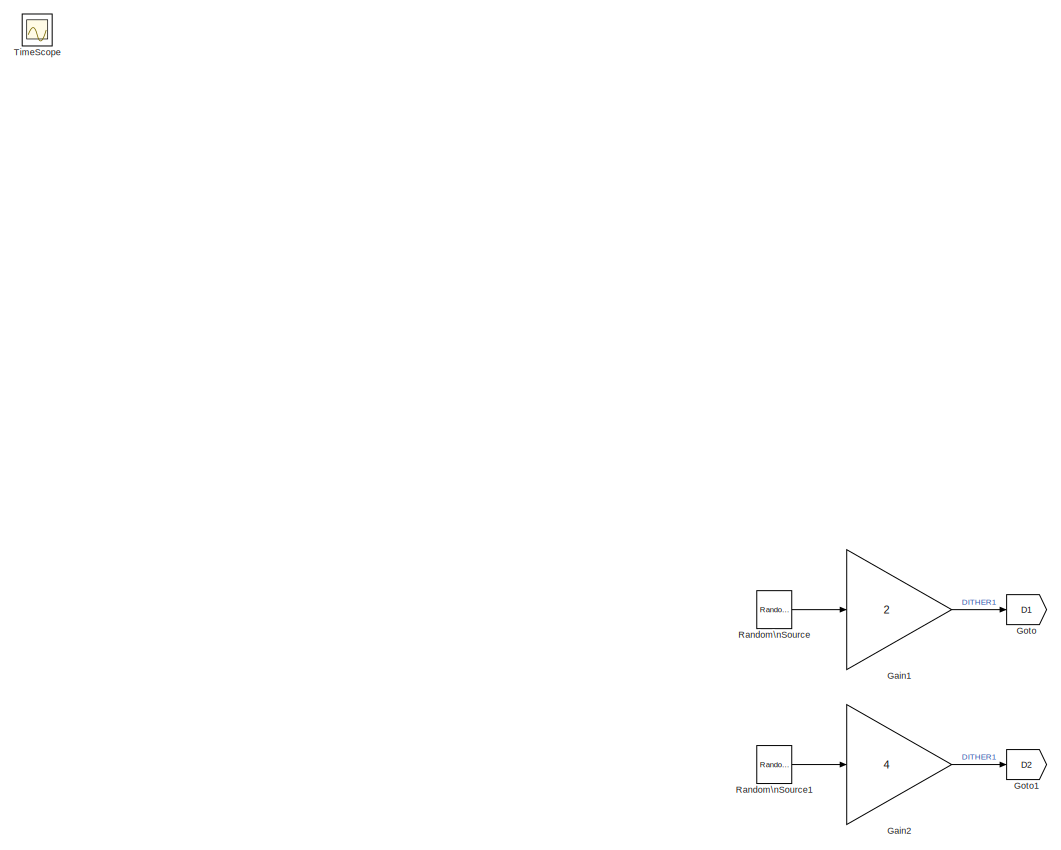
[diagram: root canvas - part 1/3, top left region]
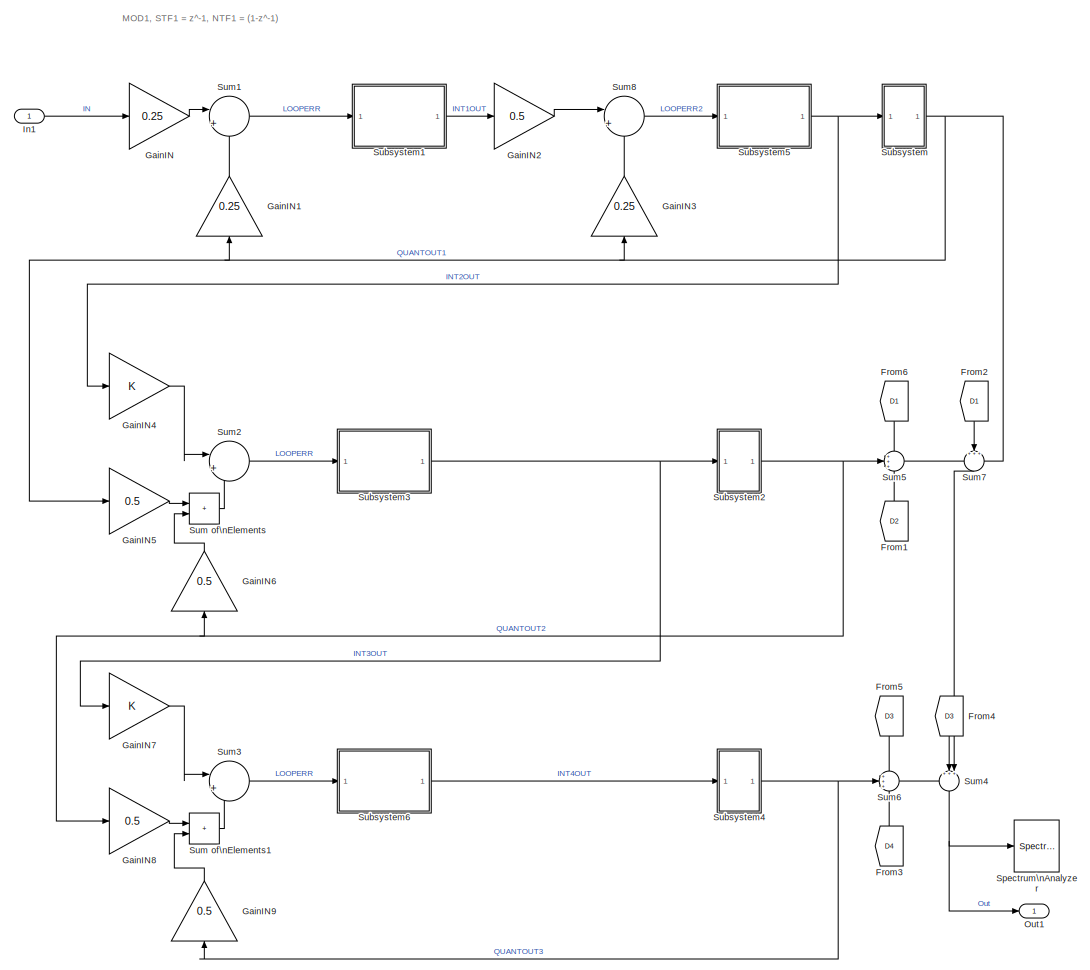
[diagram: root canvas - part 2/3, middle right region]
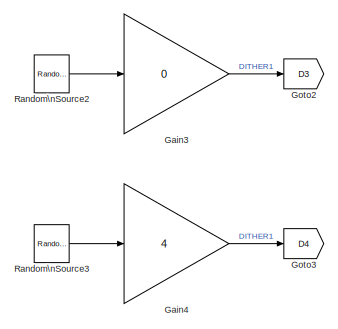
[diagram: root canvas - part 3/3, bottom center region]
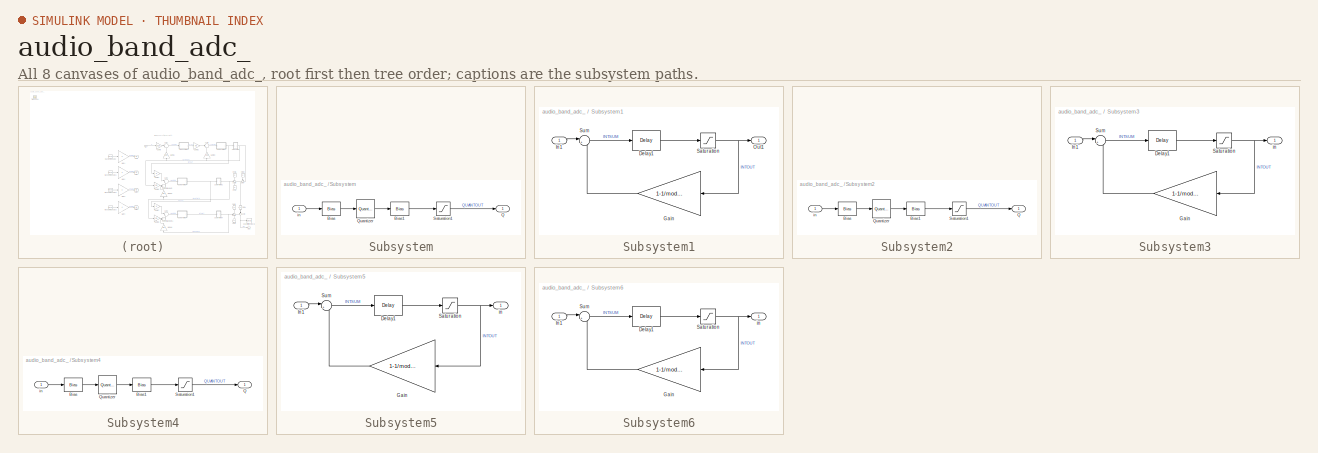
[diagram: thumbnail index - all 8 canvases of the model, root first then tree order]
MODEL audio_band_adc_
KIND model
BLOCK [From] From1
  GotoTag = D2
  NameLocation = right
  SID = 246
BLOCK [From] From2
  GotoTag = D1
  NameLocation = left
  SID = 247
BLOCK [From] From3
  GotoTag = D4
  NameLocation = right
  SID = 248
BLOCK [From] From4
  GotoTag = D3
  NameLocation = left
  SID = 249
BLOCK [From] From5
  GotoTag = D3
  NameLocation = right
  SID = 250
BLOCK [From] From6
  GotoTag = D1
  NameLocation = right
  SID = 251
BLOCK [Gain] Gain1
  AttributesFormatString = Dither level adjust
  Gain = 2
  SID = 252
BLOCK [Gain] Gain2
  AttributesFormatString = Dither level adjust
  Gain = 4
  SID = 253
BLOCK [Gain] Gain3
  AttributesFormatString = Dither level adjust
  Gain = 0
  SID = 254
BLOCK [Gain] Gain4
  AttributesFormatString = Dither level adjust
  Gain = 4
  SID = 255
BLOCK [Gain] GainIN
  Gain = 0.25
  SID = 256
BLOCK [Gain] GainIN1
  Gain = 0.25
  NameLocation = right
  SID = 257
BLOCK [Gain] GainIN2
  Gain = 0.5
  NameLocation = top
  SID = 258
BLOCK [Gain] GainIN3
  Gain = 0.25
  NameLocation = right
  SID = 259
BLOCK [Gain] GainIN4
  SID = 260
BLOCK [Gain] GainIN5
  Gain = 0.5
  SID = 261
BLOCK [Gain] GainIN6
  Gain = 0.5
  NameLocation = right
  SID = 262
BLOCK [Gain] GainIN7
  SID = 263
BLOCK [Gain] GainIN8
  Gain = 0.5
  SID = 264
BLOCK [Gain] GainIN9
  Gain = 0.5
  NameLocation = right
  SID = 265
BLOCK [Goto] Goto
  GotoTag = D1
  SID = 266
BLOCK [Goto] Goto1
  GotoTag = D2
  SID = 267
BLOCK [Goto] Goto2
  GotoTag = D3
  SID = 268
BLOCK [Goto] Goto3
  GotoTag = D4
  SID = 269
BLOCK [Inport] In1
  SID = 394
BLOCK [Outport] Out1
  SID = 337
  SignalName = Out
BLOCK [Reference] Random\nSource  REF=dspsrcs4/Random\nSource
  AttributesFormatString = Dither source
  CltLength = 12
  DataType = Double
  IsInherit = off
  MaxVal = 1
  MeanVal = 0
  MinVal = -1
  MultithreadedSim = auto
  NormMethod = Ziggurat
  OutComplex = Real
  OutputFrames = on
  Ports = [0, 1]
  RepMode = Not repeatable
  SID = 270
  SampFrame = 1
  SampMode = Discrete
  SampTime = 1/Fs
  SourceBlock = dspsrcs4/Random\nSource
  SourceProductBaseCode = DS
  SourceType = Random Source
  SrcType = Uniform
  UserData = DataTag0
  UserDataPersistent = on
  VarVal = 1
  rawSeed = 1
BLOCK [Reference] Random\nSource1  REF=dspsrcs4/Random\nSource
  AttributesFormatString = Dither source
  CltLength = 12
  DataType = Double
  IsInherit = off
  MaxVal = 1
  MeanVal = 0
  MinVal = -1
  MultithreadedSim = auto
  NormMethod = Ziggurat
  OutComplex = Real
  OutputFrames = on
  Ports = [0, 1]
  RepMode = Not repeatable
  SID = 271
  SampFrame = 1
  SampMode = Discrete
  SampTime = 1/Fs
  SourceBlock = dspsrcs4/Random\nSource
  SourceProductBaseCode = DS
  SourceType = Random Source
  SrcType = Uniform
  UserData = DataTag1
  UserDataPersistent = on
  VarVal = 1
  rawSeed = 1
BLOCK [Reference] Random\nSource2  REF=dspsrcs4/Random\nSource
  AttributesFormatString = Dither source
  CltLength = 12
  DataType = Double
  IsInherit = off
  MaxVal = 1
  MeanVal = 0
  MinVal = -1
  MultithreadedSim = auto
  NormMethod = Ziggurat
  OutComplex = Real
  OutputFrames = on
  Ports = [0, 1]
  RepMode = Not repeatable
  SID = 272
  SampFrame = 1
  SampMode = Discrete
  SampTime = 1/Fs
  SourceBlock = dspsrcs4/Random\nSource
  SourceProductBaseCode = DS
  SourceType = Random Source
  SrcType = Uniform
  UserData = DataTag2
  UserDataPersistent = on
  VarVal = 1
  rawSeed = 1
BLOCK [Reference] Random\nSource3  REF=dspsrcs4/Random\nSource
  AttributesFormatString = Dither source
  CltLength = 12
  DataType = Double
  IsInherit = off
  MaxVal = 1
  MeanVal = 0
  MinVal = -1
  MultithreadedSim = auto
  NormMethod = Ziggurat
  OutComplex = Real
  OutputFrames = on
  Ports = [0, 1]
  RepMode = Not repeatable
  SID = 273
  SampFrame = 1
  SampMode = Discrete
  SampTime = 1/Fs
  SourceBlock = dspsrcs4/Random\nSource
  SourceProductBaseCode = DS
  SourceType = Random Source
  SrcType = Uniform
  UserData = DataTag3
  UserDataPersistent = on
  VarVal = 1
  rawSeed = 1
BLOCK [SpectrumAnalyzer] Spectrum\nAnalyzer
  Ports = [1]
  SID = 391
  ScopeSpecificationString = spbscopes.SpectrumAnalyzerBlockCfg('CurrentConfiguration', extmgr.ConfigurationSet(extmgr.Configuration('Core','General UI',true),extmgr.Configuration('Core','Source UI',true),extmgr.Configuration('Sources','WiredSimulink',true),extmgr.Configuration('Visuals','Spectrum',true,'AxesProperties',struct('Color',{[0 0 0],[0 0 0]},'XColor',{[0.686274509803922 0.686274509803922 0.686274509803922],[0.68627...<+1881ch>
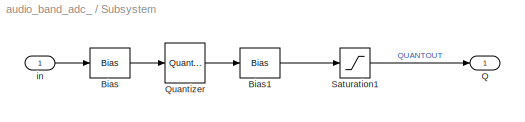
BLOCK [SubSystem] Subsystem
  AttributesFormatString = 1-bit quantiser
  Ports = [1, 1]
  RequestExecContextInheritance = off
  SID = 369
BLOCK [Bias] Subsystem/Bias
  AttributesFormatString = Need offset to give\\nMID-RISE quantiser
  Bias = 1
  SID = 371
  SaturateOnIntegerOverflow = off
BLOCK [Bias] Subsystem/Bias1
  Bias = -1
  SID = 372
  SaturateOnIntegerOverflow = off
BLOCK [Outport] Subsystem/Q
  SID = 375
BLOCK [Quantizer] Subsystem/Quantizer
  LinearizeAsGain = off
  NameLocation = top
  QuantizationInterval = 2
  SID = 373
BLOCK [Saturate] Subsystem/Saturation1
  AttributesFormatString = Limit quantiser\\noutput to +/-1
  LowerLimit = -1
  SID = 374
  UpperLimit = 1
BLOCK [Inport] Subsystem/in
  SID = 370
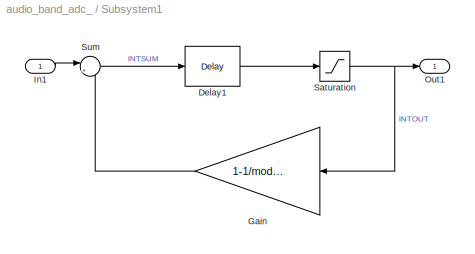
BLOCK [SubSystem] Subsystem1
  AttributesFormatString = Leaky delaying int
  Ports = [1, 1]
  RequestExecContextInheritance = off
  SID = 274
BLOCK [Delay] Subsystem1/Delay1
  DelayLength = 1
  InitialCondition = 0
  InputPortMap = u0
  Ports = [1, 1]
  SID = 276
  UserData = DataTag4
  UserDataPersistent = on
BLOCK [Gain] Subsystem1/Gain
  AttributesFormatString = Integrator leakage
  Gain = 1-1/modctrl.igain1
  SID = 277
BLOCK [Inport] Subsystem1/In1
  SID = 275
BLOCK [Outport] Subsystem1/Out1
  SID = 280
BLOCK [Saturate] Subsystem1/Saturation
  LowerLimit = -(modctrl.isat1)
  NameLocation = top
  SID = 278
  UpperLimit = modctrl.isat1
BLOCK [Sum] Subsystem1/Sum
  AttributesFormatString = Integrator summer
  Inputs = |++
  NameLocation = top
  Ports = [2, 1]
  SID = 279
BLOCK [SubSystem] Subsystem2
  AttributesFormatString = 1-bit quantiser
  Ports = [1, 1]
  RequestExecContextInheritance = off
  SID = 376
BLOCK [Bias] Subsystem2/Bias
  AttributesFormatString = Need offset to give\\nMID-RISE quantiser
  Bias = 1
  SID = 378
  SaturateOnIntegerOverflow = off
BLOCK [Bias] Subsystem2/Bias1
  Bias = -1
  SID = 379
  SaturateOnIntegerOverflow = off
BLOCK [Outport] Subsystem2/Q
  SID = 382
BLOCK [Quantizer] Subsystem2/Quantizer
  LinearizeAsGain = off
  NameLocation = top
  QuantizationInterval = 2
  SID = 380
BLOCK [Saturate] Subsystem2/Saturation1
  AttributesFormatString = Limit quantiser\\noutput to +/-1
  LowerLimit = -1
  SID = 381
  UpperLimit = 1
BLOCK [Inport] Subsystem2/in
  SID = 377
BLOCK [SubSystem] Subsystem3
  AttributesFormatString = Leaky delaying int
  Ports = [1, 1]
  RequestExecContextInheritance = off
  SID = 288
BLOCK [Delay] Subsystem3/Delay1
  DelayLength = 1
  InitialCondition = 0
  InputPortMap = u0
  Ports = [1, 1]
  SID = 290
  UserData = DataTag5
  UserDataPersistent = on
BLOCK [Gain] Subsystem3/Gain
  AttributesFormatString = Integrator leakage
  Gain = 1-1/modctrl.igain1
  SID = 291
BLOCK [Inport] Subsystem3/In1
  SID = 289
BLOCK [Saturate] Subsystem3/Saturation
  LowerLimit = -(modctrl.isat1)
  NameLocation = top
  SID = 292
  UpperLimit = modctrl.isat1
BLOCK [Sum] Subsystem3/Sum
  AttributesFormatString = Integrator summer
  Inputs = |++
  NameLocation = top
  Ports = [2, 1]
  SID = 293
BLOCK [Outport] Subsystem3/in
  SID = 294
BLOCK [SubSystem] Subsystem4
  AttributesFormatString = 1-bit quantiser
  Ports = [1, 1]
  RequestExecContextInheritance = off
  SID = 383
BLOCK [Bias] Subsystem4/Bias
  AttributesFormatString = Need offset to give\\nMID-RISE quantiser
  Bias = 1
  SID = 385
  SaturateOnIntegerOverflow = off
BLOCK [Bias] Subsystem4/Bias1
  Bias = -1
  SID = 386
  SaturateOnIntegerOverflow = off
BLOCK [Outport] Subsystem4/Q
  SID = 389
BLOCK [Quantizer] Subsystem4/Quantizer
  LinearizeAsGain = off
  NameLocation = top
  QuantizationInterval = 2
  SID = 387
BLOCK [Saturate] Subsystem4/Saturation1
  AttributesFormatString = Limit quantiser\\noutput to +/-1
  LowerLimit = -1
  SID = 388
  UpperLimit = 1
BLOCK [Inport] Subsystem4/in
  SID = 384
BLOCK [SubSystem] Subsystem5
  AttributesFormatString = Leaky delaying int
  Ports = [1, 1]
  RequestExecContextInheritance = off
  SID = 302
BLOCK [Delay] Subsystem5/Delay1
  DelayLength = 1
  InitialCondition = 0
  InputPortMap = u0
  Ports = [1, 1]
  SID = 304
  UserData = DataTag6
  UserDataPersistent = on
BLOCK [Gain] Subsystem5/Gain
  AttributesFormatString = Integrator leakage
  Gain = 1-1/modctrl.igain2
  SID = 305
BLOCK [Inport] Subsystem5/In1
  SID = 303
BLOCK [Saturate] Subsystem5/Saturation
  LowerLimit = -(modctrl.isat2)
  NameLocation = top
  SID = 306
  UpperLimit = modctrl.isat2
BLOCK [Sum] Subsystem5/Sum
  AttributesFormatString = Integrator summer
  Inputs = |++
  NameLocation = top
  Ports = [2, 1]
  SID = 307
BLOCK [Outport] Subsystem5/in
  SID = 308
BLOCK [SubSystem] Subsystem6
  AttributesFormatString = Leaky delaying int
  Ports = [1, 1]
  RequestExecContextInheritance = off
  SID = 309
BLOCK [Delay] Subsystem6/Delay1
  DelayLength = 1
  InitialCondition = 0
  InputPortMap = u0
  Ports = [1, 1]
  SID = 311
  UserData = DataTag7
  UserDataPersistent = on
BLOCK [Gain] Subsystem6/Gain
  AttributesFormatString = Integrator leakage
  Gain = 1-1/modctrl.igain1
  SID = 312
BLOCK [Inport] Subsystem6/In1
  SID = 310
BLOCK [Saturate] Subsystem6/Saturation
  LowerLimit = -(modctrl.isat1)
  NameLocation = top
  SID = 313
  UpperLimit = modctrl.isat1
BLOCK [Sum] Subsystem6/Sum
  AttributesFormatString = Integrator summer
  Inputs = |++
  NameLocation = top
  Ports = [2, 1]
  SID = 314
BLOCK [Outport] Subsystem6/in
  SID = 315
BLOCK [Sum] Sum of\nElements
  IconShape = rectangular
  Ports = [2, 1]
  SID = 324
BLOCK [Sum] Sum of\nElements1
  IconShape = rectangular
  Ports = [2, 1]
  SID = 325
BLOCK [Sum] Sum1
  AttributesFormatString = Modulator input\\nloop servo error (input - fbk)
  Inputs = |+-
  NameLocation = top
  Ports = [2, 1]
  SID = 330
BLOCK [Sum] Sum2
  AttributesFormatString = Modulator input\\nloop servo error (input - fbk)
  Inputs = |+-
  NameLocation = top
  Ports = [2, 1]
  SID = 331
BLOCK [Sum] Sum3
  AttributesFormatString = Modulator input\\nloop servo error (input - fbk)
  Inputs = |+-
  NameLocation = top
  Ports = [2, 1]
  SID = 332
BLOCK [Sum] Sum4
  Inputs = +++
  NameLocation = left
  Ports = [3, 1]
  SID = 340
BLOCK [Sum] Sum5
  Inputs = +++
  Ports = [3, 1]
  SID = 344
BLOCK [Sum] Sum6
  Inputs = +++
  Ports = [3, 1]
  SID = 341
BLOCK [Sum] Sum7
  Inputs = +++
  NameLocation = left
  Ports = [3, 1]
  SID = 339
BLOCK [Sum] Sum8
  AttributesFormatString = Modulator input\\nloop servo error (input - fbk)
  Inputs = |+-
  NameLocation = top
  Ports = [2, 1]
  SID = 336
BLOCK [Scope] TimeScope
  Floating = off
  IOType = viewer
  NumInputPorts = 1
  Ports = []
  SID = 360
  ScopeSpecificationString = Simulink.scopes.TimeScopeBlockCfg('CurrentConfiguration', extmgr.ConfigurationSet(extmgr.Configuration('Core','General UI',true),extmgr.Configuration('Core','Source UI',true),extmgr.Configuration('Sources','WiredSimulink',true,'DataLoggingVariableName','ScopeData1'),extmgr.Configuration('Visuals','Time Domain',true,'SerializedDisplays',{struct('MinYLimReal','0.4','MaxYLimReal','0.6','YLabelReal','...<+6169ch>
ANNOTATION (root): MOD1, STF1 = z^-1, NTF1 = (1-z^-1)
LINE From1:1 -> Sum5:3
LINE From2:1 -> Sum7:2
LINE From3:1 -> Sum6:3
LINE From4:1 -> Sum4:2
LINE From5:1 -> Sum6:1
LINE From6:1 -> Sum5:1
LINE Gain1:1 -> Goto:1
LINE Gain2:1 -> Goto1:1
LINE Gain3:1 -> Goto2:1
LINE Gain4:1 -> Goto3:1
LINE GainIN1:1 -> Sum1:2
LINE GainIN2:1 -> Sum8:1
LINE GainIN3:1 -> Sum8:2
LINE GainIN4:1 -> Sum2:1
LINE GainIN5:1 -> Sum of\nElements:1
LINE GainIN6:1 -> Sum of\nElements:2
LINE GainIN7:1 -> Sum3:1
LINE GainIN8:1 -> Sum of\nElements1:1
LINE GainIN9:1 -> Sum of\nElements1:2
LINE GainIN:1 -> Sum1:1
LINE In1:1 -> GainIN:1
LINE Random\nSource1:1 -> Gain2:1
LINE Random\nSource2:1 -> Gain3:1
LINE Random\nSource3:1 -> Gain4:1
LINE Random\nSource:1 -> Gain1:1
LINE Subsystem/Bias1:1 -> Subsystem/Saturation1:1
LINE Subsystem/Bias:1 -> Subsystem/Quantizer:1
LINE Subsystem/Quantizer:1 -> Subsystem/Bias1:1
LINE Subsystem/Saturation1:1 -> Subsystem/Q:1
LINE Subsystem/in:1 -> Subsystem/Bias:1
LINE Subsystem1/Delay1:1 -> Subsystem1/Saturation:1
LINE Subsystem1/Gain:1 -> Subsystem1/Sum:2
LINE Subsystem1/In1:1 -> Subsystem1/Sum:1
NET Subsystem1/Saturation:1 -> Subsystem1/Gain:1, Subsystem1/Out1:1
LINE Subsystem1/Sum:1 -> Subsystem1/Delay1:1
LINE Subsystem1:1 -> GainIN2:1
LINE Subsystem2/Bias1:1 -> Subsystem2/Saturation1:1
LINE Subsystem2/Bias:1 -> Subsystem2/Quantizer:1
LINE Subsystem2/Quantizer:1 -> Subsystem2/Bias1:1
LINE Subsystem2/Saturation1:1 -> Subsystem2/Q:1
LINE Subsystem2/in:1 -> Subsystem2/Bias:1
NET Subsystem2:1 -> GainIN6:1, GainIN8:1, Sum5:2
LINE Subsystem3/Delay1:1 -> Subsystem3/Saturation:1
LINE Subsystem3/Gain:1 -> Subsystem3/Sum:2
LINE Subsystem3/In1:1 -> Subsystem3/Sum:1
NET Subsystem3/Saturation:1 -> Subsystem3/Gain:1, Subsystem3/in:1
LINE Subsystem3/Sum:1 -> Subsystem3/Delay1:1
NET Subsystem3:1 -> GainIN7:1, Subsystem2:1
LINE Subsystem4/Bias1:1 -> Subsystem4/Saturation1:1
LINE Subsystem4/Bias:1 -> Subsystem4/Quantizer:1
LINE Subsystem4/Quantizer:1 -> Subsystem4/Bias1:1
LINE Subsystem4/Saturation1:1 -> Subsystem4/Q:1
LINE Subsystem4/in:1 -> Subsystem4/Bias:1
NET Subsystem4:1 -> GainIN9:1, Sum6:2
LINE Subsystem5/Delay1:1 -> Subsystem5/Saturation:1
LINE Subsystem5/Gain:1 -> Subsystem5/Sum:2
LINE Subsystem5/In1:1 -> Subsystem5/Sum:1
NET Subsystem5/Saturation:1 -> Subsystem5/Gain:1, Subsystem5/in:1
LINE Subsystem5/Sum:1 -> Subsystem5/Delay1:1
NET Subsystem5:1 -> GainIN4:1, Subsystem:1
LINE Subsystem6/Delay1:1 -> Subsystem6/Saturation:1
LINE Subsystem6/Gain:1 -> Subsystem6/Sum:2
LINE Subsystem6/In1:1 -> Subsystem6/Sum:1
NET Subsystem6/Saturation:1 -> Subsystem6/Gain:1, Subsystem6/in:1
LINE Subsystem6/Sum:1 -> Subsystem6/Delay1:1
LINE Subsystem6:1 -> Subsystem4:1
NET Subsystem:1 -> GainIN1:1, GainIN3:1, GainIN5:1, Sum7:3
LINE Sum of\nElements1:1 -> Sum3:2
LINE Sum of\nElements:1 -> Sum2:2
LINE Sum1:1 -> Subsystem1:1
LINE Sum2:1 -> Subsystem3:1
LINE Sum3:1 -> Subsystem6:1
NET Sum4:1 -> Out1:1, Spectrum\nAnalyzer:1
LINE Sum5:1 -> Sum7:1
LINE Sum6:1 -> Sum4:1
LINE Sum7:1 -> Sum4:3
LINE Sum8:1 -> Subsystem5:1
note: NET lines group one-source signal fan-out (src -> all destinations, sorted); 1:1 wires keep LINE
